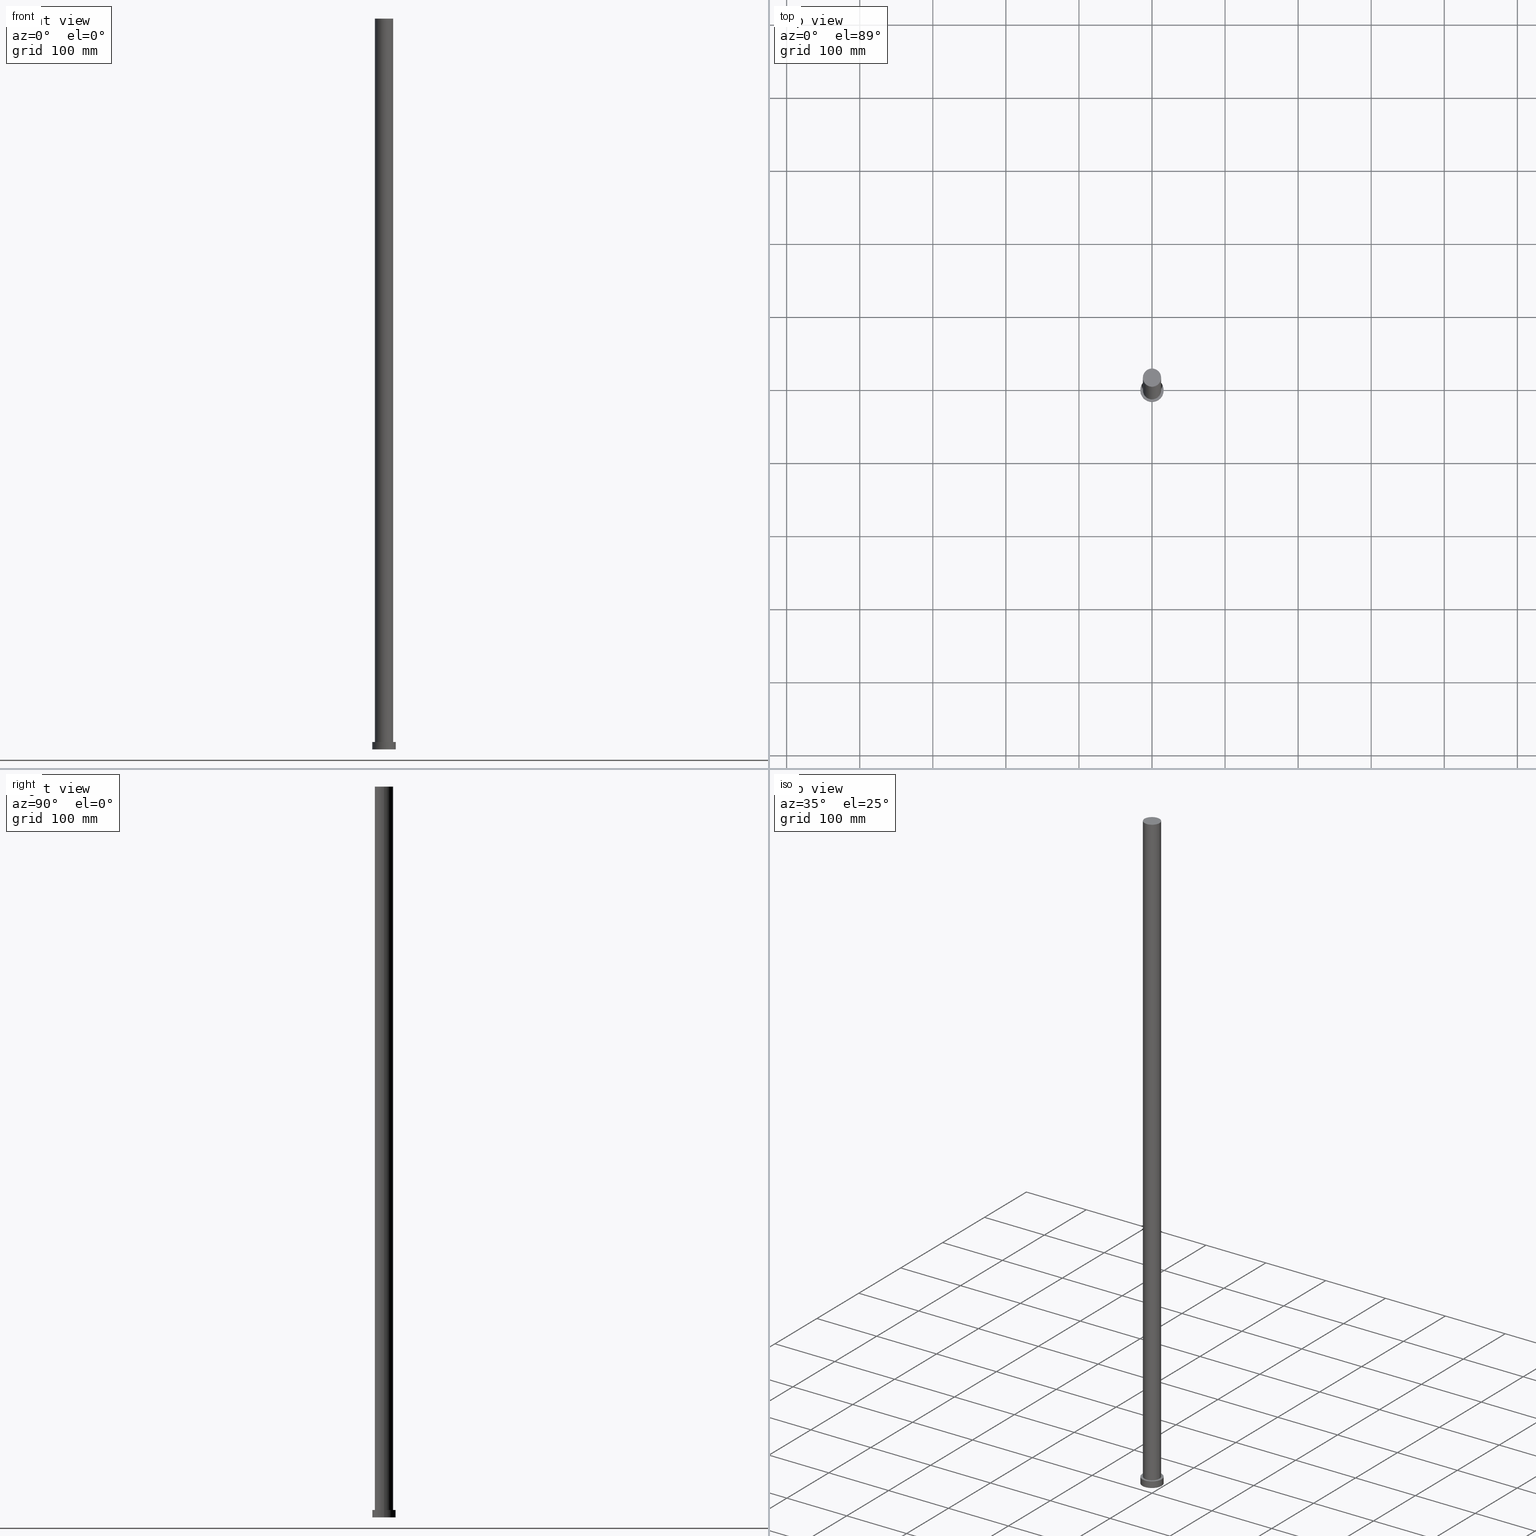
[diagram: canonical four-view strip — front | top / right | iso, engineering-drawing reading convention]
A machine part, canonical four-view strip (front | top / right | iso — engineering-drawing reading convention). The complete STEP part file that produces these views, byte-faithful:
ISO-10303-21;
HEADER;
FILE_DESCRIPTION (( 'STEP AP203' ),
    '1' );
FILE_NAME ('0e57.STEP',
    '2023-02-12T10:27:50',
    ( '' ),
    ( '' ),
    'SwSTEP 2.0',
    'SolidWorks 2019',
    '' );
FILE_SCHEMA (( 'CONFIG_CONTROL_DESIGN' ));
ENDSEC;

DATA;
#1 = CIRCLE ( 'NONE', #35, 12.50000000000000000 ) ;
#2 = APPROVAL_PERSON_ORGANIZATION ( #31, #229, #26 ) ;
#3 = PERSON ( 'NEUR�EN�', 'NEUR�EN�', 'NEUR�EN�', ('NEUR�EN�'), ('NEUR�EN�'), ('NEUR�EN�') ) ;
#4 = DATE_TIME_ROLE ( 'creation_date' ) ;
#5 = EDGE_CURVE ( 'NONE', #210, #61, #102, .T. ) ;
#6 = SHAPE_DEFINITION_REPRESENTATION ( #64, #53 ) ;
#7 = AXIS2_PLACEMENT_3D ( 'NONE', #92, #115, #174 ) ;
#8 = PERSON_AND_ORGANIZATION ( #3, #80 ) ;
#9 = DIRECTION ( 'NONE',  ( -1.000000000000000000, 0.000000000000000000, 0.000000000000000000 ) ) ;
#10 = ADVANCED_FACE ( 'NONE', ( #17 ), #93, .T. ) ;
#11 = LOCAL_TIME ( 11, 27, 50.00000000000000000, #86 ) ;
#12 = PLANE ( 'NONE',  #132 ) ;
#13 = APPROVAL_PERSON_ORGANIZATION ( #149, #139, #127 ) ;
#14 = DIRECTION ( 'NONE',  ( 0.000000000000000000, 0.000000000000000000, 1.000000000000000000 ) ) ;
#15 = EDGE_LOOP ( 'NONE', ( #208, #96 ) ) ;
#16 = EDGE_CURVE ( 'NONE', #38, #159, #1, .T. ) ;
#17 = FACE_OUTER_BOUND ( 'NONE', #41, .T. ) ;
#18 = DIRECTION ( 'NONE',  ( 0.000000000000000000, 0.000000000000000000, 1.000000000000000000 ) ) ;
#19 = ORIENTED_EDGE ( 'NONE', *, *, #164, .F. ) ;
#20 = EDGE_CURVE ( 'NONE', #81, #159, #241, .T. ) ;
#21 = AXIS2_PLACEMENT_3D ( 'NONE', #89, #155, #188 ) ;
#22 = DIRECTION ( 'NONE',  ( -1.000000000000000000, 0.000000000000000000, 0.000000000000000000 ) ) ;
#23 = CYLINDRICAL_SURFACE ( 'NONE', #51, 16.00000000000000000 ) ;
#24 = CYLINDRICAL_SURFACE ( 'NONE', #232, 12.50000000000000000 ) ;
#25 = DATE_AND_TIME ( #191, #30 ) ;
#26 = APPROVAL_ROLE ( '' ) ;
#27 = ADVANCED_FACE ( 'NONE', ( #72 ), #122, .T. ) ;
#28 = DATE_AND_TIME ( #103, #137 ) ;
#29 = APPROVAL_DATE_TIME ( #129, #246 ) ;
#30 = LOCAL_TIME ( 11, 27, 50.00000000000000000, #151 ) ;
#31 = PERSON_AND_ORGANIZATION ( #3, #80 ) ;
#32 = DIRECTION ( 'NONE',  ( -0.000000000000000000, -0.000000000000000000, -1.000000000000000000 ) ) ;
#33 = DIRECTION ( 'NONE',  ( -0.000000000000000000, -0.000000000000000000, -1.000000000000000000 ) ) ;
#34 = CARTESIAN_POINT ( 'NONE',  ( 0.000000000000000000, 0.000000000000000000, 0.000000000000000000 ) ) ;
#35 = AXIS2_PLACEMENT_3D ( 'NONE', #44, #43, #98 ) ;
#36 = CARTESIAN_POINT ( 'NONE',  ( 0.000000000000000000, 0.000000000000000000, 10.00000000000000000 ) ) ;
#37 = SECURITY_CLASSIFICATION ( '', '', #197 ) ;
#38 = VERTEX_POINT ( 'NONE', #189 ) ;
#39 = CIRCLE ( 'NONE', #130, 12.50000000000000000 ) ;
#40 = ORIENTED_EDGE ( 'NONE', *, *, #235, .F. ) ;
#41 = EDGE_LOOP ( 'NONE', ( #19, #160, #56, #40 ) ) ;
#42 = EDGE_CURVE ( 'NONE', #249, #210, #125, .T. ) ;
#43 = DIRECTION ( 'NONE',  ( 0.000000000000000000, 0.000000000000000000, 1.000000000000000000 ) ) ;
#44 = CARTESIAN_POINT ( 'NONE',  ( 0.000000000000000000, 0.000000000000000000, 10.00000000000000000 ) ) ;
#45 = DATE_AND_TIME ( #87, #203 ) ;
#46 = DIRECTION ( 'NONE',  ( -0.000000000000000000, -0.000000000000000000, -1.000000000000000000 ) ) ;
#47 = PERSON_AND_ORGANIZATION_ROLE ( 'classification_officer' ) ;
#48 = CC_DESIGN_APPROVAL ( #246, ( #63 ) ) ;
#49 = DATE_AND_TIME ( #182, #150 ) ;
#50 = PERSON_AND_ORGANIZATION ( #3, #80 ) ;
#51 = AXIS2_PLACEMENT_3D ( 'NONE', #254, #213, #9 ) ;
#52 = ADVANCED_FACE ( 'NONE', ( #177 ), #23, .T. ) ;
#53 = ADVANCED_BREP_SHAPE_REPRESENTATION ( '0e57', ( #123, #105 ), #117 ) ;
#54 = DIRECTION ( 'NONE',  ( 0.000000000000000000, 0.000000000000000000, 1.000000000000000000 ) ) ;
#55 = CC_DESIGN_APPROVAL ( #229, ( #106 ) ) ;
#56 = ORIENTED_EDGE ( 'NONE', *, *, #5, .T. ) ;
#57 = EDGE_LOOP ( 'NONE', ( #175, #226 ) ) ;
#58 = DIRECTION ( 'NONE',  ( 1.000000000000000000, 0.000000000000000000, 0.000000000000000000 ) ) ;
#59 = ORIENTED_EDGE ( 'NONE', *, *, #42, .F. ) ;
#60 = CIRCLE ( 'NONE', #70, 16.00000000000000000 ) ;
#61 = VERTEX_POINT ( 'NONE', #82 ) ;
#62 = EDGE_LOOP ( 'NONE', ( #91, #77, #143, #206 ) ) ;
#63 = PRODUCT_DEFINITION ( 'NEZN�M�', '', #106, #167 ) ;
#64 = PRODUCT_DEFINITION_SHAPE ( 'NONE', 'NONE',  #63 ) ;
#65 = APPROVAL_DATE_TIME ( #28, #139 ) ;
#66 = CARTESIAN_POINT ( 'NONE',  ( -12.50000000000000000, 0.000000000000000000, 1000.000000000000000 ) ) ;
#67 = CALENDAR_DATE ( 2023, 12, 2 ) ;
#68 = CARTESIAN_POINT ( 'NONE',  ( 12.50000000000000000, 1.530808498934191521E-15, 1000.000000000000000 ) ) ;
#69 = CC_DESIGN_DATE_AND_TIME_ASSIGNMENT ( #45, #4, ( #63 ) ) ;
#70 = AXIS2_PLACEMENT_3D ( 'NONE', #113, #157, #184 ) ;
#71 = PERSON_AND_ORGANIZATION_ROLE ( 'creator' ) ;
#72 = FACE_OUTER_BOUND ( 'NONE', #62, .T. ) ;
#73 = CIRCLE ( 'NONE', #112, 16.00000000000000000 ) ;
#74 = DIRECTION ( 'NONE',  ( 0.000000000000000000, 0.000000000000000000, 1.000000000000000000 ) ) ;
#75 = CARTESIAN_POINT ( 'NONE',  ( 0.000000000000000000, 0.000000000000000000, 0.000000000000000000 ) ) ;
#76 = ORIENTED_EDGE ( 'NONE', *, *, #255, .T. ) ;
#77 = ORIENTED_EDGE ( 'NONE', *, *, #118, .T. ) ;
#78 = DIRECTION ( 'NONE',  ( 0.000000000000000000, 0.000000000000000000, 1.000000000000000000 ) ) ;
#79 = VERTEX_POINT ( 'NONE', #231 ) ;
#80 = ORGANIZATION ( 'NEUR�EN�', 'NEUR�EN�', '' ) ;
#81 = VERTEX_POINT ( 'NONE', #190 ) ;
#82 = CARTESIAN_POINT ( 'NONE',  ( -16.00000000000000000, 0.000000000000000000, 0.000000000000000000 ) ) ;
#83 = DIRECTION ( 'NONE',  ( -0.000000000000000000, -0.000000000000000000, -1.000000000000000000 ) ) ;
#84 = CC_DESIGN_SECURITY_CLASSIFICATION ( #37, ( #106 ) ) ;
#85 = LINE ( 'NONE', #68, #211 ) ;
#86 = COORDINATED_UNIVERSAL_TIME_OFFSET ( 1, 0, .AHEAD. ) ;
#87 = CALENDAR_DATE ( 2023, 12, 2 ) ;
#88 = PERSON_AND_ORGANIZATION_ROLE ( 'design_supplier' ) ;
#89 = CARTESIAN_POINT ( 'NONE',  ( 0.000000000000000000, 0.000000000000000000, 10.00000000000000000 ) ) ;
#90 = PLANE ( 'NONE',  #242 ) ;
#91 = ORIENTED_EDGE ( 'NONE', *, *, #154, .F. ) ;
#92 = CARTESIAN_POINT ( 'NONE',  ( 0.000000000000000000, 0.000000000000000000, 1000.000000000000000 ) ) ;
#93 = CYLINDRICAL_SURFACE ( 'NONE', #111, 16.00000000000000000 ) ;
#94 = DIRECTION ( 'NONE',  ( 1.000000000000000000, 0.000000000000000000, -0.000000000000000000 ) ) ;
#95 = ORIENTED_EDGE ( 'NONE', *, *, #5, .F. ) ;
#96 = ORIENTED_EDGE ( 'NONE', *, *, #16, .F. ) ;
#97 = VECTOR ( 'NONE', #32, 1000.000000000000000 ) ;
#98 = DIRECTION ( 'NONE',  ( 1.000000000000000000, 0.000000000000000000, 0.000000000000000000 ) ) ;
#99 = DIRECTION ( 'NONE',  ( -1.000000000000000000, 0.000000000000000000, 0.000000000000000000 ) ) ;
#100 = PRODUCT ( '0e57', '0e57', '', ( #195 ) ) ;
#101 = CARTESIAN_POINT ( 'NONE',  ( 0.000000000000000000, 0.000000000000000000, 0.000000000000000000 ) ) ;
#102 = CIRCLE ( 'NONE', #185, 16.00000000000000000 ) ;
#103 = CALENDAR_DATE ( 2023, 12, 2 ) ;
#104 = CC_DESIGN_PERSON_AND_ORGANIZATION_ASSIGNMENT ( #50, #146, ( #100 ) ) ;
#105 = AXIS2_PLACEMENT_3D ( 'NONE', #101, #78, #58 ) ;
#106 = PRODUCT_DEFINITION_FORMATION_WITH_SPECIFIED_SOURCE ( 'LIBOVOLN�', '', #100, .NOT_KNOWN. ) ;
#107 = FACE_OUTER_BOUND ( 'NONE', #251, .T. ) ;
#108 = APPROVAL_ROLE ( '' ) ;
#109 = ADVANCED_FACE ( 'NONE', ( #145 ), #24, .T. ) ;
#110 = CARTESIAN_POINT ( 'NONE',  ( 16.00000000000000000, 1.959434878635765131E-15, 10.00000000000000000 ) ) ;
#111 = AXIS2_PLACEMENT_3D ( 'NONE', #173, #46, #22 ) ;
#112 = AXIS2_PLACEMENT_3D ( 'NONE', #133, #74, #250 ) ;
#113 = CARTESIAN_POINT ( 'NONE',  ( 0.000000000000000000, 0.000000000000000000, 10.00000000000000000 ) ) ;
#114 = VERTEX_POINT ( 'NONE', #179 ) ;
#115 = DIRECTION ( 'NONE',  ( 0.000000000000000000, 0.000000000000000000, 1.000000000000000000 ) ) ;
#116 = DIRECTION ( 'NONE',  ( 1.000000000000000000, 0.000000000000000000, 0.000000000000000000 ) ) ;
#117 =( GEOMETRIC_REPRESENTATION_CONTEXT ( 3 ) GLOBAL_UNCERTAINTY_ASSIGNED_CONTEXT ( ( #228 ) ) GLOBAL_UNIT_ASSIGNED_CONTEXT ( ( #187, #168, #135 ) ) REPRESENTATION_CONTEXT ( 'NONE', 'WORKASPACE' ) );
#118 = EDGE_CURVE ( 'NONE', #79, #38, #85, .T. ) ;
#119 = APPLICATION_PROTOCOL_DEFINITION ( 'international standard', 'config_control_design', 1994, #178 ) ;
#120 = VECTOR ( 'NONE', #131, 1000.000000000000000 ) ;
#121 = CIRCLE ( 'NONE', #7, 12.50000000000000000 ) ;
#122 = CYLINDRICAL_SURFACE ( 'NONE', #170, 12.50000000000000000 ) ;
#123 = MANIFOLD_SOLID_BREP ( 'P�idat vysunut�m3', #147 ) ;
#124 = PERSON_AND_ORGANIZATION ( #3, #80 ) ;
#125 = LINE ( 'NONE', #166, #120 ) ;
#126 = APPROVAL_PERSON_ORGANIZATION ( #193, #246, #108 ) ;
#127 = APPROVAL_ROLE ( '' ) ;
#128 = ADVANCED_FACE ( 'NONE', ( #192, #107 ), #180, .T. ) ;
#129 = DATE_AND_TIME ( #67, #11 ) ;
#130 = AXIS2_PLACEMENT_3D ( 'NONE', #36, #138, #204 ) ;
#131 = DIRECTION ( 'NONE',  ( -0.000000000000000000, -0.000000000000000000, -1.000000000000000000 ) ) ;
#132 = AXIS2_PLACEMENT_3D ( 'NONE', #75, #54, #201 ) ;
#133 = CARTESIAN_POINT ( 'NONE',  ( 0.000000000000000000, 0.000000000000000000, 10.00000000000000000 ) ) ;
#134 = ADVANCED_FACE ( 'NONE', ( #152 ), #90, .T. ) ;
#135 =( NAMED_UNIT ( * ) SI_UNIT ( $, .STERADIAN. ) SOLID_ANGLE_UNIT ( ) );
#136 = DIRECTION ( 'NONE',  ( 1.000000000000000000, 0.000000000000000000, 0.000000000000000000 ) ) ;
#137 = LOCAL_TIME ( 11, 27, 50.00000000000000000, #194 ) ;
#138 = DIRECTION ( 'NONE',  ( 0.000000000000000000, 0.000000000000000000, 1.000000000000000000 ) ) ;
#139 = APPROVAL ( #218, 'NEUR�EN�' ) ;
#140 = ORIENTED_EDGE ( 'NONE', *, *, #200, .T. ) ;
#141 = ORIENTED_EDGE ( 'NONE', *, *, #200, .F. ) ;
#142 = ORIENTED_EDGE ( 'NONE', *, *, #20, .T. ) ;
#143 = ORIENTED_EDGE ( 'NONE', *, *, #16, .T. ) ;
#144 = DIRECTION ( 'NONE',  ( -0.000000000000000000, -0.000000000000000000, -1.000000000000000000 ) ) ;
#145 = FACE_OUTER_BOUND ( 'NONE', #162, .T. ) ;
#146 = PERSON_AND_ORGANIZATION_ROLE ( 'design_owner' ) ;
#147 = CLOSED_SHELL ( 'NONE', ( #27, #10, #52, #128, #161, #109, #134 ) ) ;
#148 = EDGE_CURVE ( 'NONE', #159, #38, #39, .T. ) ;
#149 = PERSON_AND_ORGANIZATION ( #3, #80 ) ;
#150 = LOCAL_TIME ( 11, 27, 50.00000000000000000, #221 ) ;
#151 = COORDINATED_UNIVERSAL_TIME_OFFSET ( 1, 0, .AHEAD. ) ;
#152 = FACE_OUTER_BOUND ( 'NONE', #57, .T. ) ;
#153 = AXIS2_PLACEMENT_3D ( 'NONE', #34, #14, #247 ) ;
#154 = EDGE_CURVE ( 'NONE', #79, #81, #121, .T. ) ;
#155 = DIRECTION ( 'NONE',  ( 0.000000000000000000, 0.000000000000000000, 1.000000000000000000 ) ) ;
#156 = CARTESIAN_POINT ( 'NONE',  ( 0.000000000000000000, 0.000000000000000000, 1000.000000000000000 ) ) ;
#157 = DIRECTION ( 'NONE',  ( 0.000000000000000000, 0.000000000000000000, 1.000000000000000000 ) ) ;
#158 = EDGE_LOOP ( 'NONE', ( #141, #95 ) ) ;
#159 = VERTEX_POINT ( 'NONE', #224 ) ;
#160 = ORIENTED_EDGE ( 'NONE', *, *, #42, .T. ) ;
#161 = ADVANCED_FACE ( 'NONE', ( #244 ), #12, .F. ) ;
#162 = EDGE_LOOP ( 'NONE', ( #253, #252, #142, #176 ) ) ;
#163 = VECTOR ( 'NONE', #33, 1000.000000000000000 ) ;
#164 = EDGE_CURVE ( 'NONE', #249, #114, #73, .T. ) ;
#165 = PERSON_AND_ORGANIZATION ( #3, #80 ) ;
#166 = CARTESIAN_POINT ( 'NONE',  ( 16.00000000000000000, 1.959434878635765131E-15, 10.00000000000000000 ) ) ;
#167 = DESIGN_CONTEXT ( 'detailed design', #240, 'design' ) ;
#168 =( NAMED_UNIT ( * ) PLANE_ANGLE_UNIT ( ) SI_UNIT ( $, .RADIAN. ) );
#169 = ORIENTED_EDGE ( 'NONE', *, *, #255, .F. ) ;
#170 = AXIS2_PLACEMENT_3D ( 'NONE', #233, #212, #198 ) ;
#171 = DIRECTION ( 'NONE',  ( 0.000000000000000000, 0.000000000000000000, 1.000000000000000000 ) ) ;
#172 = CIRCLE ( 'NONE', #153, 16.00000000000000000 ) ;
#173 = CARTESIAN_POINT ( 'NONE',  ( 0.000000000000000000, 0.000000000000000000, 10.00000000000000000 ) ) ;
#174 = DIRECTION ( 'NONE',  ( 1.000000000000000000, 0.000000000000000000, 0.000000000000000000 ) ) ;
#175 = ORIENTED_EDGE ( 'NONE', *, *, #196, .T. ) ;
#176 = ORIENTED_EDGE ( 'NONE', *, *, #148, .T. ) ;
#177 = FACE_OUTER_BOUND ( 'NONE', #225, .T. ) ;
#178 = APPLICATION_CONTEXT ( 'configuration controlled 3d designs of mechanical parts and assemblies' ) ;
#179 = CARTESIAN_POINT ( 'NONE',  ( -16.00000000000000000, 0.000000000000000000, 10.00000000000000000 ) ) ;
#180 = PLANE ( 'NONE',  #21 ) ;
#181 = PERSON_AND_ORGANIZATION_ROLE ( 'creator' ) ;
#182 = CALENDAR_DATE ( 2023, 12, 2 ) ;
#183 = CC_DESIGN_PERSON_AND_ORGANIZATION_ASSIGNMENT ( #219, #88, ( #106 ) ) ;
#184 = DIRECTION ( 'NONE',  ( 1.000000000000000000, 0.000000000000000000, 0.000000000000000000 ) ) ;
#185 = AXIS2_PLACEMENT_3D ( 'NONE', #245, #205, #116 ) ;
#186 = CC_DESIGN_PERSON_AND_ORGANIZATION_ASSIGNMENT ( #124, #71, ( #106 ) ) ;
#187 =( LENGTH_UNIT ( ) NAMED_UNIT ( * ) SI_UNIT ( .MILLI., .METRE. ) );
#188 = DIRECTION ( 'NONE',  ( 1.000000000000000000, 0.000000000000000000, -0.000000000000000000 ) ) ;
#189 = CARTESIAN_POINT ( 'NONE',  ( 12.50000000000000000, 1.530808498934191521E-15, 10.00000000000000000 ) ) ;
#190 = CARTESIAN_POINT ( 'NONE',  ( -12.50000000000000000, 0.000000000000000000, 1000.000000000000000 ) ) ;
#191 = CALENDAR_DATE ( 2023, 12, 2 ) ;
#192 = FACE_BOUND ( 'NONE', #15, .T. ) ;
#193 = PERSON_AND_ORGANIZATION ( #3, #80 ) ;
#194 = COORDINATED_UNIVERSAL_TIME_OFFSET ( 1, 0, .AHEAD. ) ;
#195 = MECHANICAL_CONTEXT ( 'NONE', #178, 'mechanical' ) ;
#196 = EDGE_CURVE ( 'NONE', #81, #79, #237, .T. ) ;
#197 = SECURITY_CLASSIFICATION_LEVEL ( 'unclassified' ) ;
#198 = DIRECTION ( 'NONE',  ( -1.000000000000000000, 0.000000000000000000, 0.000000000000000000 ) ) ;
#199 = LINE ( 'NONE', #222, #163 ) ;
#200 = EDGE_CURVE ( 'NONE', #61, #210, #172, .T. ) ;
#201 = DIRECTION ( 'NONE',  ( 1.000000000000000000, 0.000000000000000000, -0.000000000000000000 ) ) ;
#202 = CARTESIAN_POINT ( 'NONE',  ( 16.00000000000000000, 1.959434878635765131E-15, 0.000000000000000000 ) ) ;
#203 = LOCAL_TIME ( 11, 27, 50.00000000000000000, #238 ) ;
#204 = DIRECTION ( 'NONE',  ( 1.000000000000000000, 0.000000000000000000, 0.000000000000000000 ) ) ;
#205 = DIRECTION ( 'NONE',  ( 0.000000000000000000, 0.000000000000000000, 1.000000000000000000 ) ) ;
#206 = ORIENTED_EDGE ( 'NONE', *, *, #20, .F. ) ;
#207 = CC_DESIGN_PERSON_AND_ORGANIZATION_ASSIGNMENT ( #8, #181, ( #63 ) ) ;
#208 = ORIENTED_EDGE ( 'NONE', *, *, #148, .F. ) ;
#209 = CC_DESIGN_APPROVAL ( #139, ( #37 ) ) ;
#210 = VERTEX_POINT ( 'NONE', #202 ) ;
#211 = VECTOR ( 'NONE', #83, 1000.000000000000000 ) ;
#212 = DIRECTION ( 'NONE',  ( -0.000000000000000000, -0.000000000000000000, -1.000000000000000000 ) ) ;
#213 = DIRECTION ( 'NONE',  ( -0.000000000000000000, -0.000000000000000000, -1.000000000000000000 ) ) ;
#214 = APPLICATION_PROTOCOL_DEFINITION ( 'international standard', 'config_control_design', 1994, #240 ) ;
#215 = CARTESIAN_POINT ( 'NONE',  ( 0.000000000000000000, 0.000000000000000000, 1000.000000000000000 ) ) ;
#216 = CC_DESIGN_PERSON_AND_ORGANIZATION_ASSIGNMENT ( #165, #47, ( #37 ) ) ;
#217 = APPROVAL_STATUS ( 'not_yet_approved' ) ;
#218 = APPROVAL_STATUS ( 'not_yet_approved' ) ;
#219 = PERSON_AND_ORGANIZATION ( #3, #80 ) ;
#220 = PRODUCT_RELATED_PRODUCT_CATEGORY ( 'detail', '', ( #100 ) ) ;
#221 = COORDINATED_UNIVERSAL_TIME_OFFSET ( 1, 0, .AHEAD. ) ;
#222 = CARTESIAN_POINT ( 'NONE',  ( -16.00000000000000000, 0.000000000000000000, 10.00000000000000000 ) ) ;
#223 = CARTESIAN_POINT ( 'NONE',  ( 0.000000000000000000, 0.000000000000000000, 1000.000000000000000 ) ) ;
#224 = CARTESIAN_POINT ( 'NONE',  ( -12.50000000000000000, 0.000000000000000000, 10.00000000000000000 ) ) ;
#225 = EDGE_LOOP ( 'NONE', ( #59, #169, #227, #140 ) ) ;
#226 = ORIENTED_EDGE ( 'NONE', *, *, #154, .T. ) ;
#227 = ORIENTED_EDGE ( 'NONE', *, *, #235, .T. ) ;
#228 = UNCERTAINTY_MEASURE_WITH_UNIT (LENGTH_MEASURE( 1.000000000000000082E-05 ), #187, 'distance_accuracy_value', 'NONE');
#229 = APPROVAL ( #234, 'NEUR�EN�' ) ;
#230 = ORIENTED_EDGE ( 'NONE', *, *, #164, .T. ) ;
#231 = CARTESIAN_POINT ( 'NONE',  ( 12.50000000000000000, 1.530808498934191521E-15, 1000.000000000000000 ) ) ;
#232 = AXIS2_PLACEMENT_3D ( 'NONE', #215, #144, #99 ) ;
#233 = CARTESIAN_POINT ( 'NONE',  ( 0.000000000000000000, 0.000000000000000000, 1000.000000000000000 ) ) ;
#234 = APPROVAL_STATUS ( 'not_yet_approved' ) ;
#235 = EDGE_CURVE ( 'NONE', #114, #61, #199, .T. ) ;
#236 = DATE_TIME_ROLE ( 'classification_date' ) ;
#237 = CIRCLE ( 'NONE', #248, 12.50000000000000000 ) ;
#238 = COORDINATED_UNIVERSAL_TIME_OFFSET ( 1, 0, .AHEAD. ) ;
#239 = APPROVAL_DATE_TIME ( #49, #229 ) ;
#240 = APPLICATION_CONTEXT ( 'configuration controlled 3d designs of mechanical parts and assemblies' ) ;
#241 = LINE ( 'NONE', #66, #97 ) ;
#242 = AXIS2_PLACEMENT_3D ( 'NONE', #223, #18, #94 ) ;
#243 = CC_DESIGN_DATE_AND_TIME_ASSIGNMENT ( #25, #236, ( #37 ) ) ;
#244 = FACE_OUTER_BOUND ( 'NONE', #158, .T. ) ;
#245 = CARTESIAN_POINT ( 'NONE',  ( 0.000000000000000000, 0.000000000000000000, 0.000000000000000000 ) ) ;
#246 = APPROVAL ( #217, 'NEUR�EN�' ) ;
#247 = DIRECTION ( 'NONE',  ( 1.000000000000000000, 0.000000000000000000, 0.000000000000000000 ) ) ;
#248 = AXIS2_PLACEMENT_3D ( 'NONE', #156, #171, #136 ) ;
#249 = VERTEX_POINT ( 'NONE', #110 ) ;
#250 = DIRECTION ( 'NONE',  ( 1.000000000000000000, 0.000000000000000000, 0.000000000000000000 ) ) ;
#251 = EDGE_LOOP ( 'NONE', ( #76, #230 ) ) ;
#252 = ORIENTED_EDGE ( 'NONE', *, *, #196, .F. ) ;
#253 = ORIENTED_EDGE ( 'NONE', *, *, #118, .F. ) ;
#254 = CARTESIAN_POINT ( 'NONE',  ( 0.000000000000000000, 0.000000000000000000, 10.00000000000000000 ) ) ;
#255 = EDGE_CURVE ( 'NONE', #114, #249, #60, .T. ) ;
ENDSEC;
END-ISO-10303-21;
